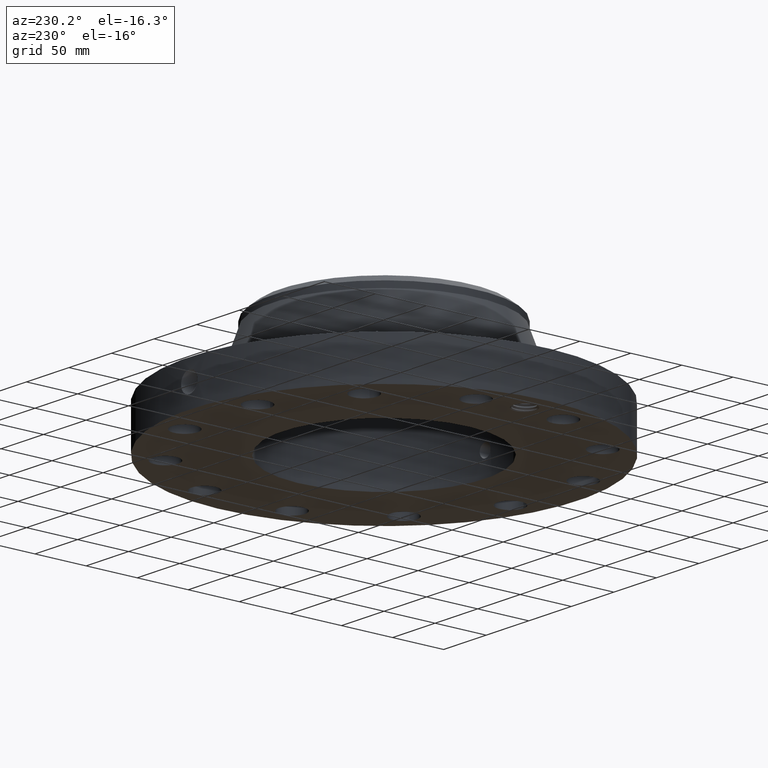
[diagram: clean part render]
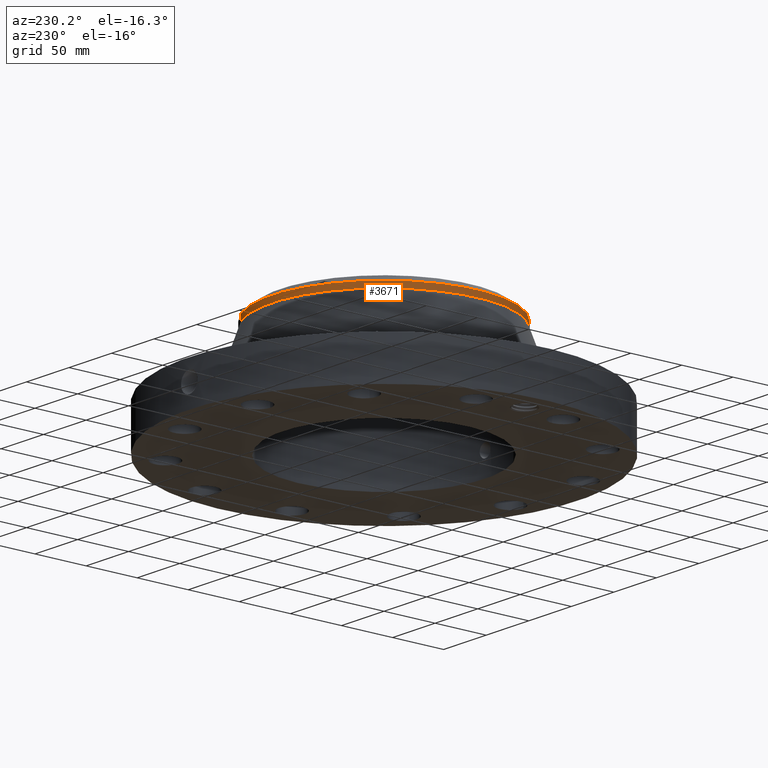
[diagram: same view with one face highlighted and labeled with its STEP entity id]
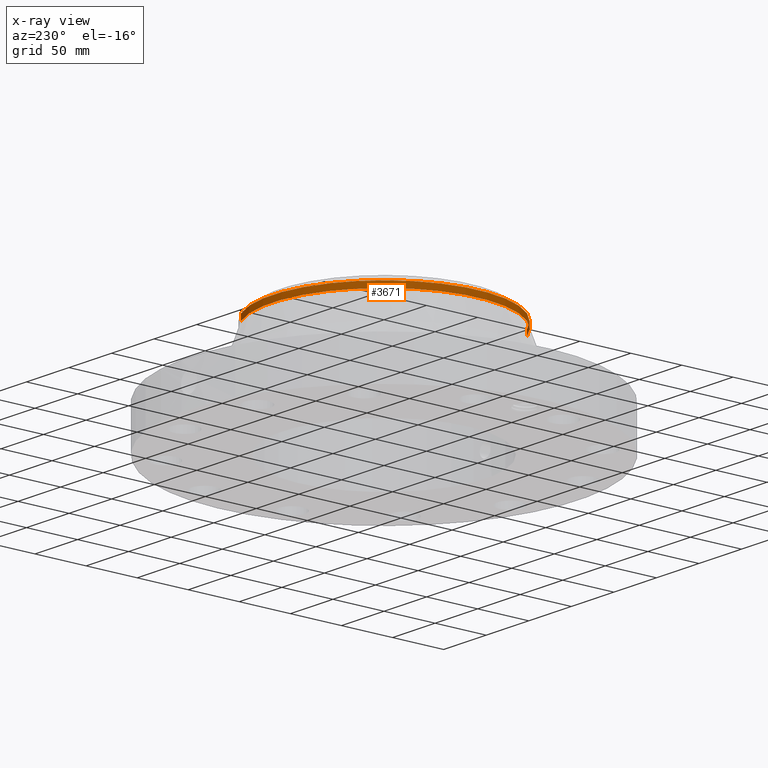
[diagram: x-ray of the same camera — body ghosted, the highlighted face saturated]
A machine part, auxiliary view. The second image highlights one B-rep face of the part: STEP entity #3671.
The next image is the same camera in x-ray: the body ghosted, the highlighted face saturated — about 0% of this face is hidden behind the body in this view.
In plain terms, the highlighted cylindrical surface (partial cylindrical patch) has radius 109.601 mm, axis along (0, 0, -1).
Its self-contained STEP definition (entity closure, byte-faithful):
#2866=AXIS2_PLACEMENT_3D('Circle Axis2P3D',#2864,#2865,$) ;
#3295=AXIS2_PLACEMENT_3D('Circle Axis2P3D',#3293,#3294,$) ;
#3322=AXIS2_PLACEMENT_3D('Circle Axis2P3D',#3320,#3321,$) ;
#3644=AXIS2_PLACEMENT_3D('Cylinder Axis2P3D',#3641,#3642,#3643) ;
#2842=CARTESIAN_POINT('Vertex',(2.06872119909,3.78676875457,3.95074590086)) ;
#2849=CARTESIAN_POINT('Vertex',(-2.06872119909,-3.78676875457,3.95074590086)) ;
#2864=CARTESIAN_POINT('Axis2P3D Location',(0.,0.,3.95074590086)) ;
#3290=CARTESIAN_POINT('Vertex',(-2.06872119909,3.78676875457,4.1869663733)) ;
#3293=CARTESIAN_POINT('Axis2P3D Location',(0.,0.,4.1869663733)) ;
#3297=CARTESIAN_POINT('Vertex',(-2.06872119909,-3.78676875457,4.1869663733)) ;
#3317=CARTESIAN_POINT('Vertex',(2.06872119909,3.78676875457,4.1869663733)) ;
#3320=CARTESIAN_POINT('Axis2P3D Location',(0.,0.,4.1869663733)) ;
#3641=CARTESIAN_POINT('Axis2P3D Location',(0.,0.,2.25000000001)) ;
#3646=CARTESIAN_POINT('Line Origine',(-2.06872119909,-3.78676875457,4.06885613708)) ;
#3651=CARTESIAN_POINT('Line Origine',(2.06872119909,3.78676875457,4.06885613708)) ;
#2865=DIRECTION('Axis2P3D Direction',(0.,0.,-0.0393700787402)) ;
#3294=DIRECTION('Axis2P3D Direction',(0.,0.,-0.0393700787402)) ;
#3321=DIRECTION('Axis2P3D Direction',(0.,0.,-0.0393700787402)) ;
#3642=DIRECTION('Axis2P3D Direction',(0.,0.,-0.0393700787402)) ;
#3643=DIRECTION('Axis2P3D XDirection',(-0.0188750212049,-0.0345504945626,0.)) ;
#3647=DIRECTION('Vector Direction',(0.,0.,-0.0393700787402)) ;
#3652=DIRECTION('Vector Direction',(0.,0.,-0.0393700787402)) ;
#3648=VECTOR('Line Direction',#3647,0.0393700787402) ;
#3653=VECTOR('Line Direction',#3652,0.0393700787402) ;
#3665=ORIENTED_EDGE('',*,*,#3655,.F.) ;
#3666=ORIENTED_EDGE('',*,*,#2868,.F.) ;
#3667=ORIENTED_EDGE('',*,*,#3650,.T.) ;
#3668=ORIENTED_EDGE('',*,*,#3299,.F.) ;
#3669=ORIENTED_EDGE('',*,*,#3324,.T.) ;
#3671=ADVANCED_FACE('PartBody',(#3670),#3645,.T.) ;
#2867=CIRCLE('generated circle',#2866,4.31500000002) ;
#3296=CIRCLE('generated circle',#3295,4.31500000002) ;
#3323=CIRCLE('generated circle',#3322,4.31500000002) ;
#3645=CYLINDRICAL_SURFACE('generated cylinder',#3644,4.31500000002) ;
#2868=EDGE_CURVE('',#2850,#2843,#2867,.T.) ;
#3299=EDGE_CURVE('',#3291,#3298,#3296,.F.) ;
#3324=EDGE_CURVE('',#3291,#3318,#3323,.T.) ;
#3650=EDGE_CURVE('',#2850,#3298,#3649,.F.) ;
#3655=EDGE_CURVE('',#2843,#3318,#3654,.F.) ;
#3664=EDGE_LOOP('',(#3665,#3666,#3667,#3668,#3669)) ;
#3670=FACE_OUTER_BOUND('',#3664,.T.) ;
#3649=LINE('Line',#3646,#3648) ;
#3654=LINE('Line',#3651,#3653) ;
#2843=VERTEX_POINT('',#2842) ;
#2850=VERTEX_POINT('',#2849) ;
#3291=VERTEX_POINT('',#3290) ;
#3298=VERTEX_POINT('',#3297) ;
#3318=VERTEX_POINT('',#3317) ;